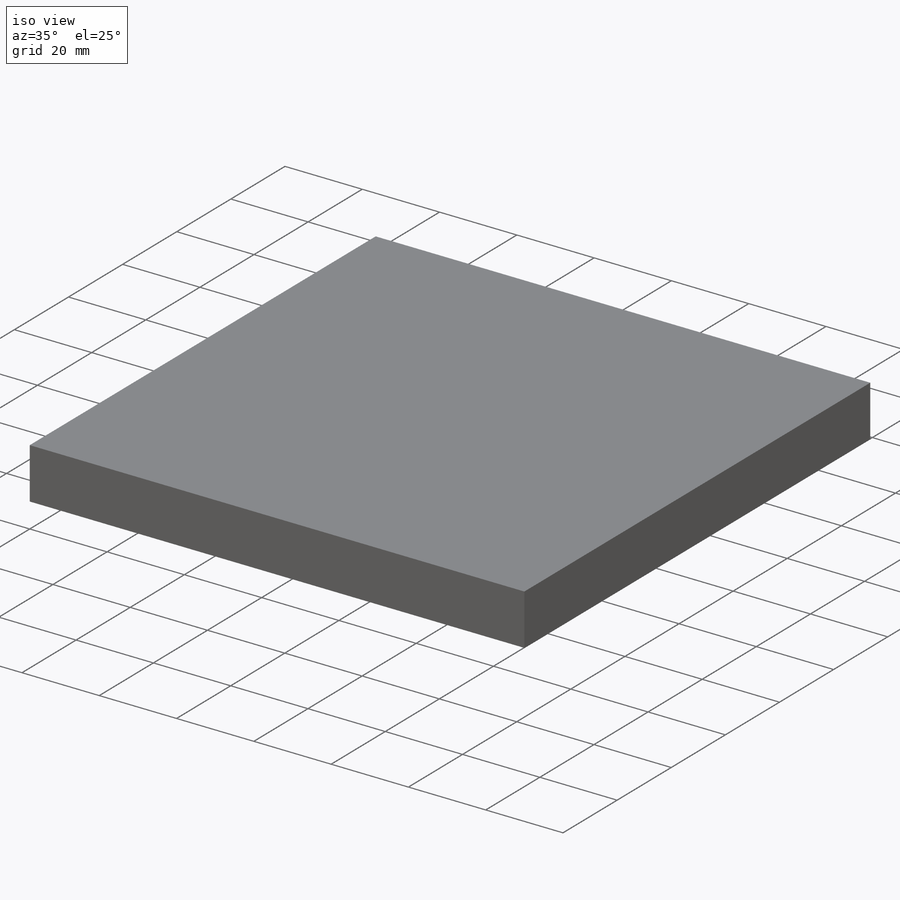
[diagram: iso view]
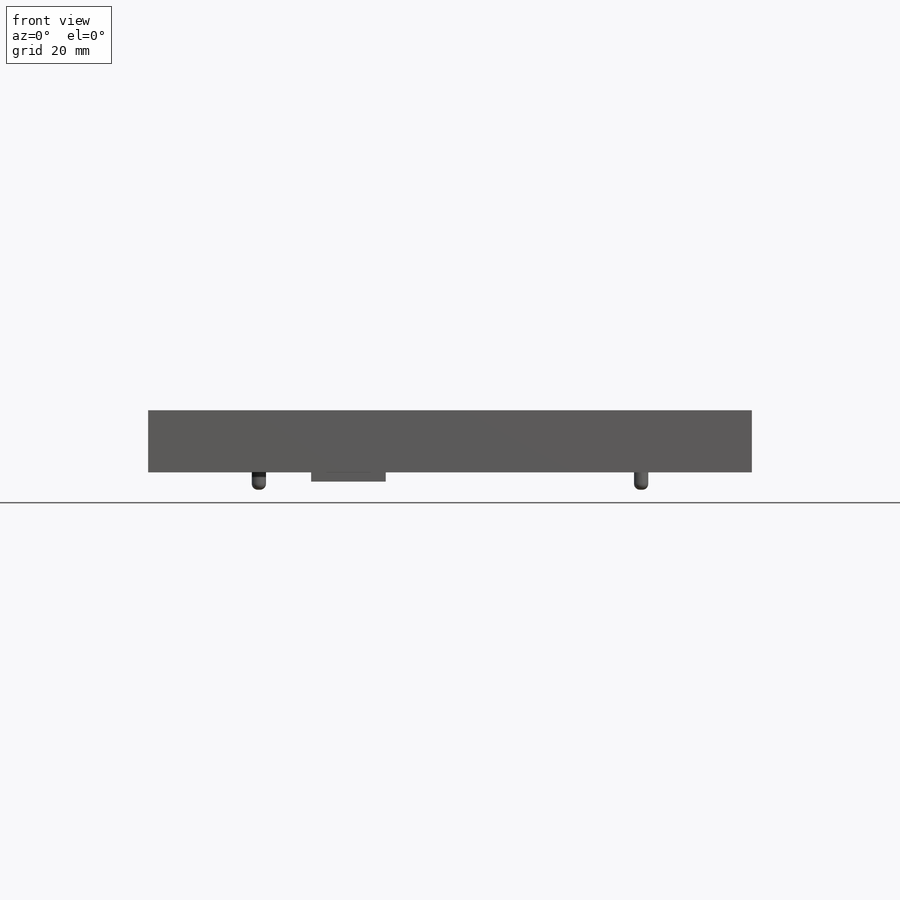
[diagram: front view]
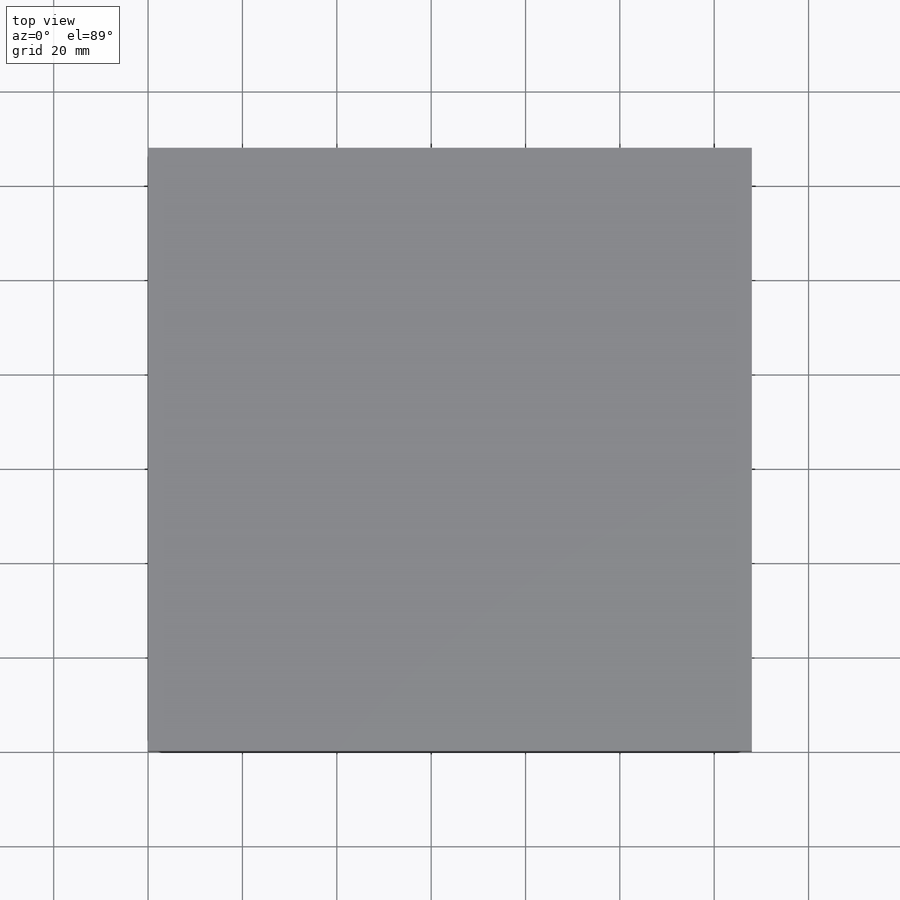
[diagram: top view]
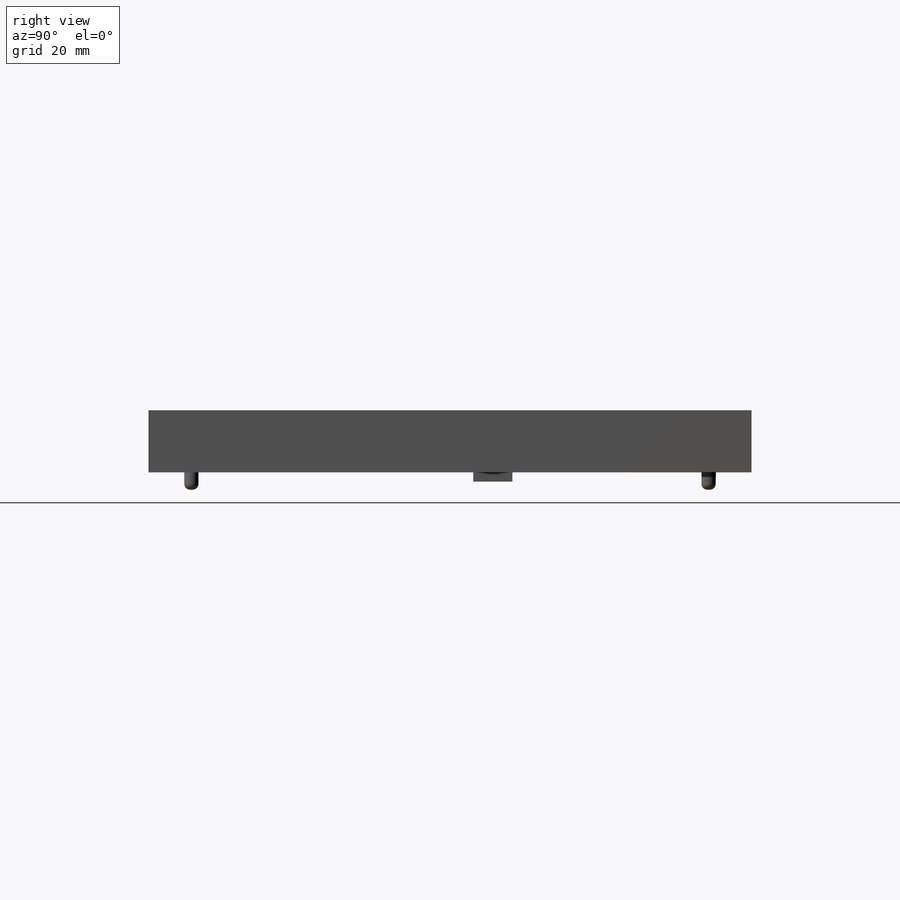
[diagram: right view]
SOLIDWORKS PART (.sldprt)
format: sldprt  version: not decoded by parser v0  size: 257,024 bytes
history: native  units: mm
features: sketch x6, fillet x6, extrude x4, cut_extrude x2, material x1 (+11 scaffold rows collapsed)
feature tree (30):
  scaffold x11  (default folders/planes/origin — collapsed)
  material  "CA"
  sketch  "Sketch1"  dims[D1=127.9906mm D2=127.8382mm]
  extrude  "Boss-Extrude1"  Depth=13.1826mm
  sketch  "Sketch2"  dims[D1=12.7mm D2=12.7mm D3=12.7mm D4=12.7mm]
  cut_extrude  "Cut-Extrude1"  Depth=7.874mm
  sketch  "Sketch3"  dims[D1=2.54mm D2=4.445mm D3=19.05mm]
  cut_extrude  "Cut-Extrude2"  Depth=7.874mm
  sketch  "Sketch4"  dims[D1=15.7988mm D2=8.2804mm D3=37.9984mm D4=21.8694mm]
  extrude  "Boss-Extrude2"  Depth=9.8298mm
  sketch  "Sketch5"  dims[D1=8.89mm D2=27.94mm D3=0.5842mm D4=35.2298mm]
  extrude  "Boss-Extrude3"  Depth=7.874mm
  sketch  "Sketch6"  dims[D1=3.0226mm D2=3.5941mm D3=10.7823mm]
  extrude  "Boss-Extrude4"  Depth=3.683mm
  fillet  "Fillet3"  Radius=1.27mm
  fillet  "Fillet4"  Radius=1.27mm
  fillet  "Fillet5"  Radius=1.27mm
  fillet  "Fillet6"  Radius=1.27mm
  fillet  "Fillet8"  Radius=1.27mm
  fillet  "Fillet9"  Radius=1.27mm
decode coverage: 18 of 18 modeling features carry decoded parameters
note: suppression state not decoded; provenance and decode notes live in map.json
